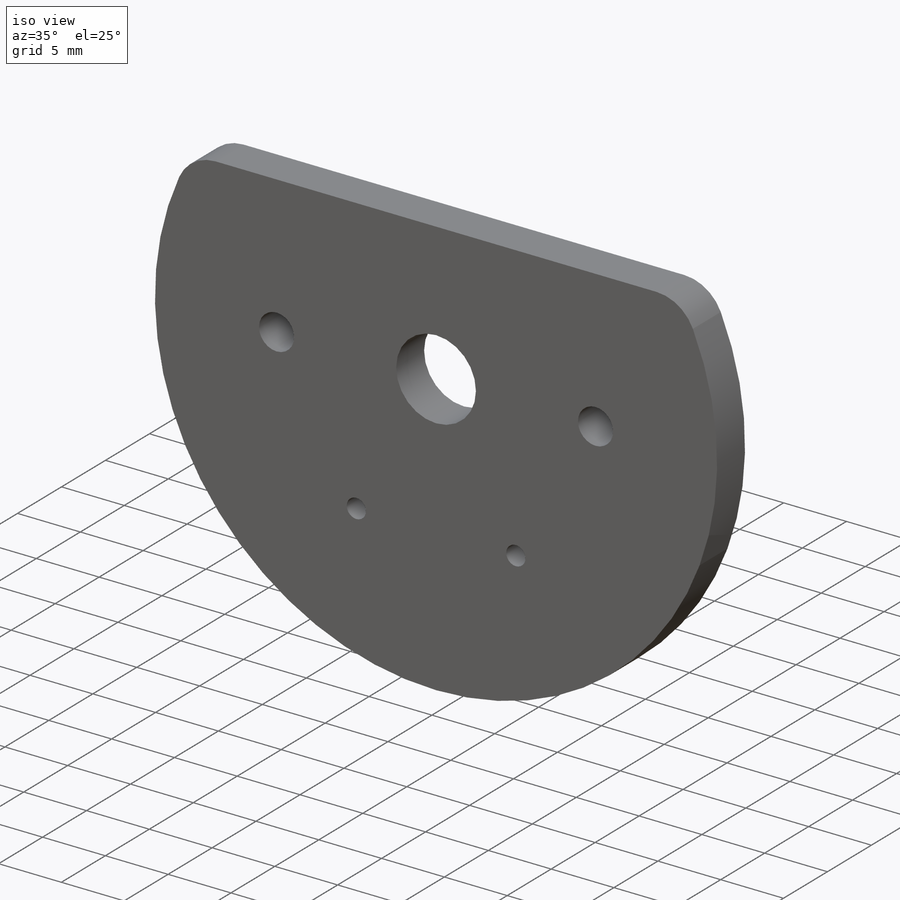
[diagram: iso view]
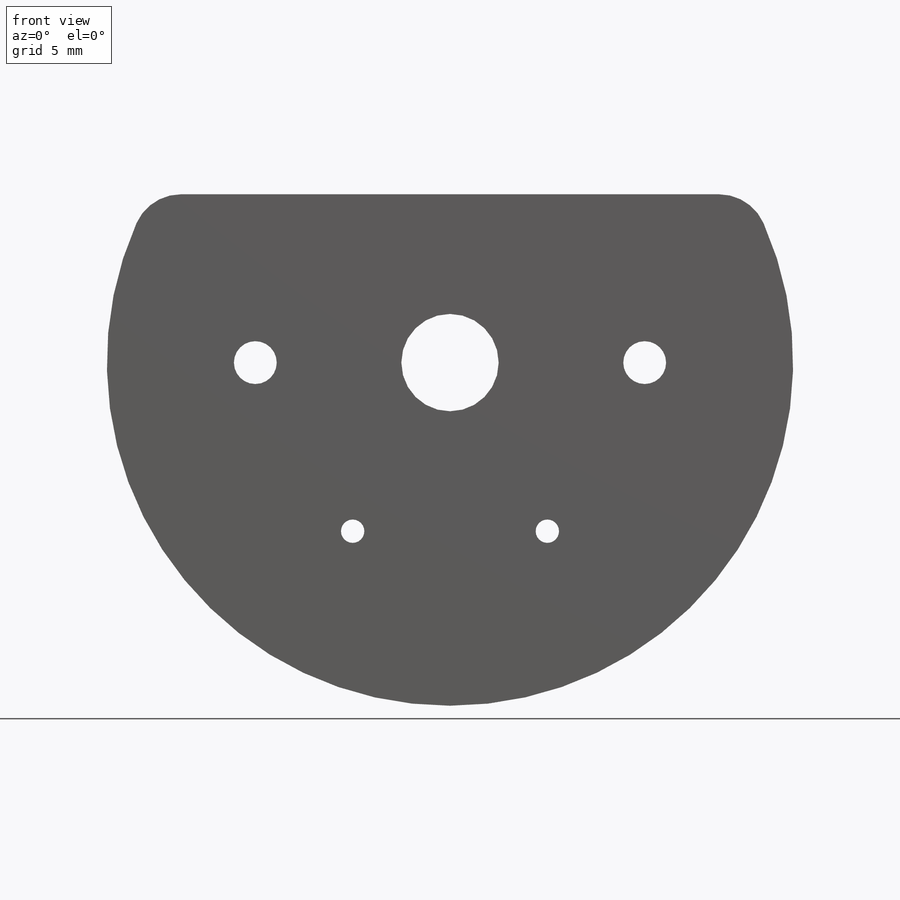
[diagram: front view]
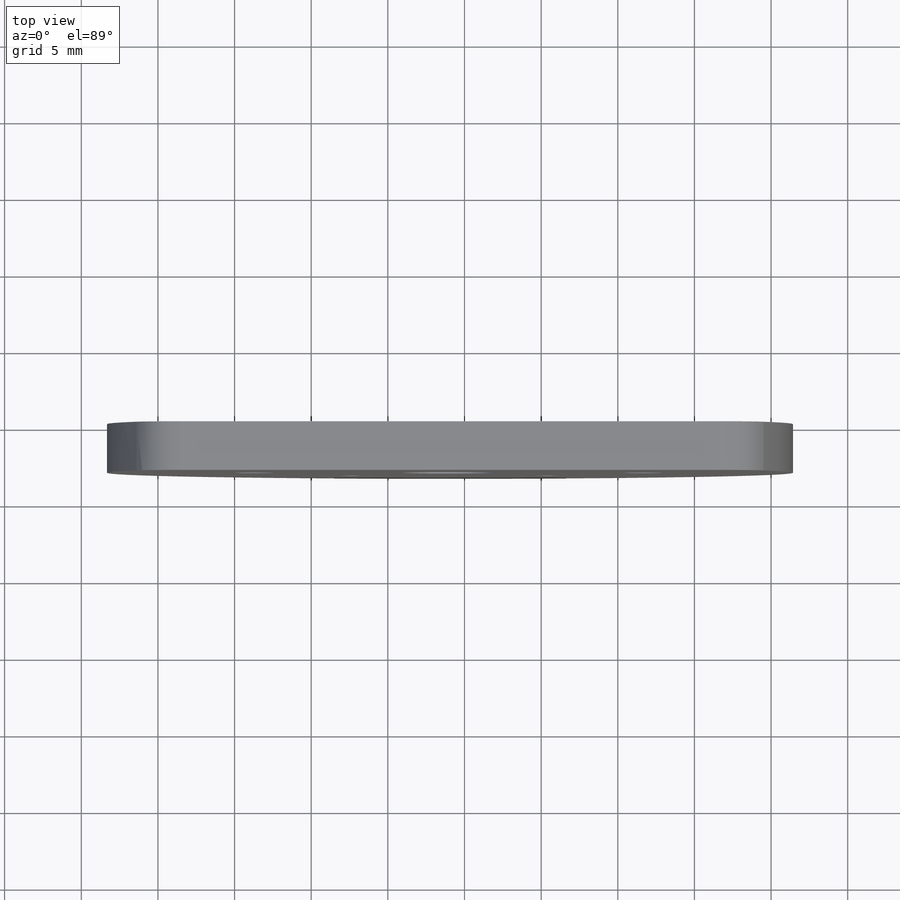
[diagram: top view]
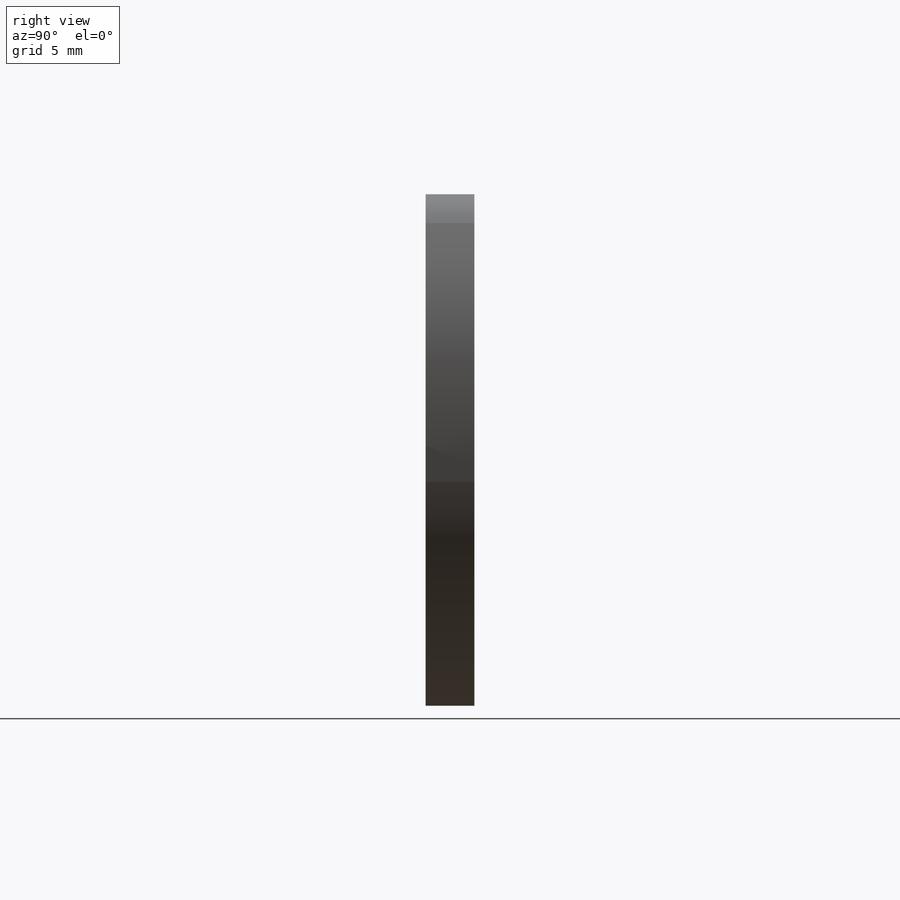
[diagram: right view]
SOLIDWORKS PART (.sldprt)
format: sldprt  version: not decoded by parser v0  size: 202,752 bytes
history: native  units: mm
features: sketch x6, cut_extrude x3, extrude x2, material x1, pattern_circular x1 (+12 scaffold rows collapsed)
feature tree (25):
  scaffold x12  (default folders/planes/origin — collapsed)
  material  "Material <not specified>"
  sketch  "Sketch1"  dims[c1.D1=0.0mm c1.D3=0.0mm c1.Lock_Diameter=0.0mm c1.D2=~28.374805mm c2.D2=45.0deg]
  extrude  "Boss-Extrude1"  Depth=3.175mm
  sketch  "Sketch2"  dims[D1=6.35mm D2=3.175mm D3=3.175mm D4=~97.760282mm]
  cut_extrude  "Cut-Extrude1"  [1 undecoded]
  sketch  "Sketch3"  dims[D1=97.7646mm]
  sketch  "Sketch4"  dims[c1.D1=3.048mm c1.D2=2.794mm c1.D3=1.524mm c2.D1=12.7mm c2.D4=~10.995087mm c3.D4=60.0deg]
  cut_extrude  "Cut-Extrude3"  [1 undecoded]
  pattern_circular  "CirPattern1"  Count=6 Angle=60deg
  sketch  "Sketch7"  dims[D1=3.175mm]
  extrude  "Boss-Extrude2"  [1 undecoded]
  sketch  "Sketch8"  dims[D1=6.35mm]
  cut_extrude  "Cut-Extrude4"  [1 undecoded]
decode coverage: 8 of 12 modeling features carry decoded parameters
note: ~ marks probable driven/reference dimensions
note: 4 parameter values undecoded
summary: no parameter record found for 4 features
note: suppression state not decoded; provenance and decode notes live in map.json
